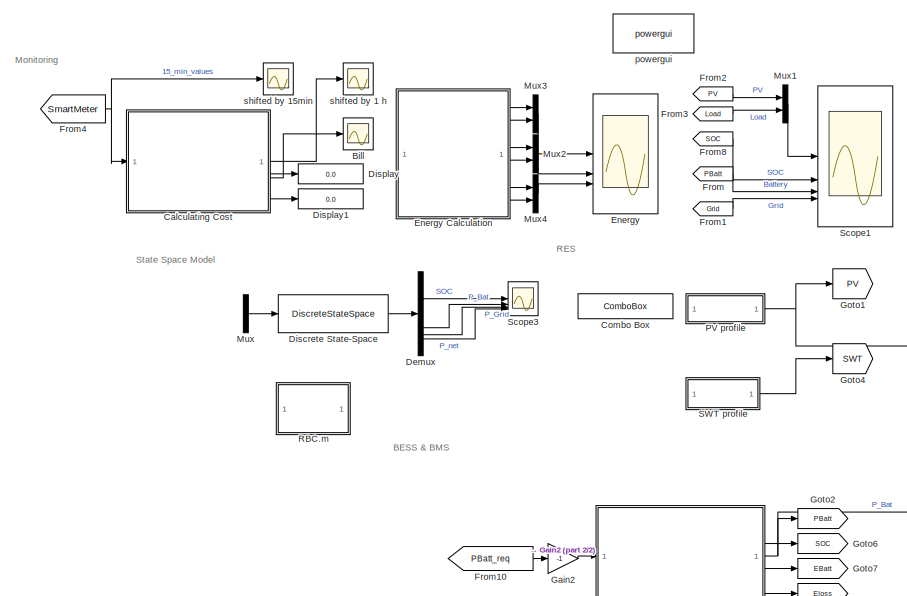
[diagram: root canvas - part 1/2, left side, full height]
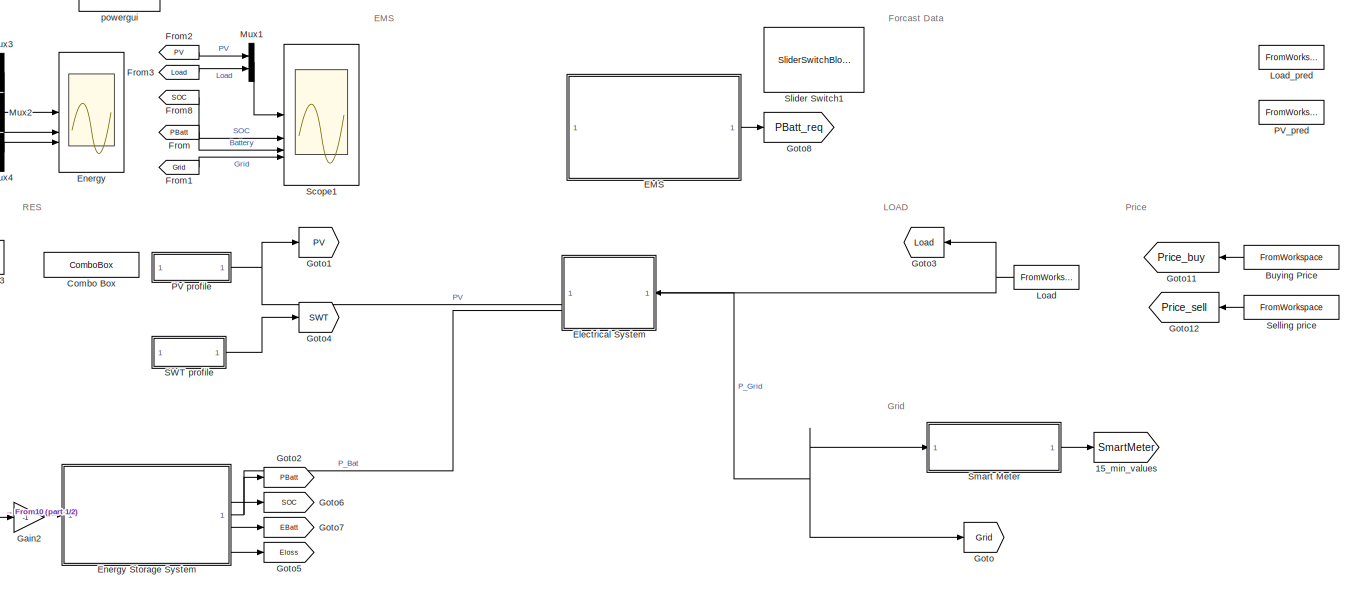
[diagram: root canvas - part 2/2, center side, full height]
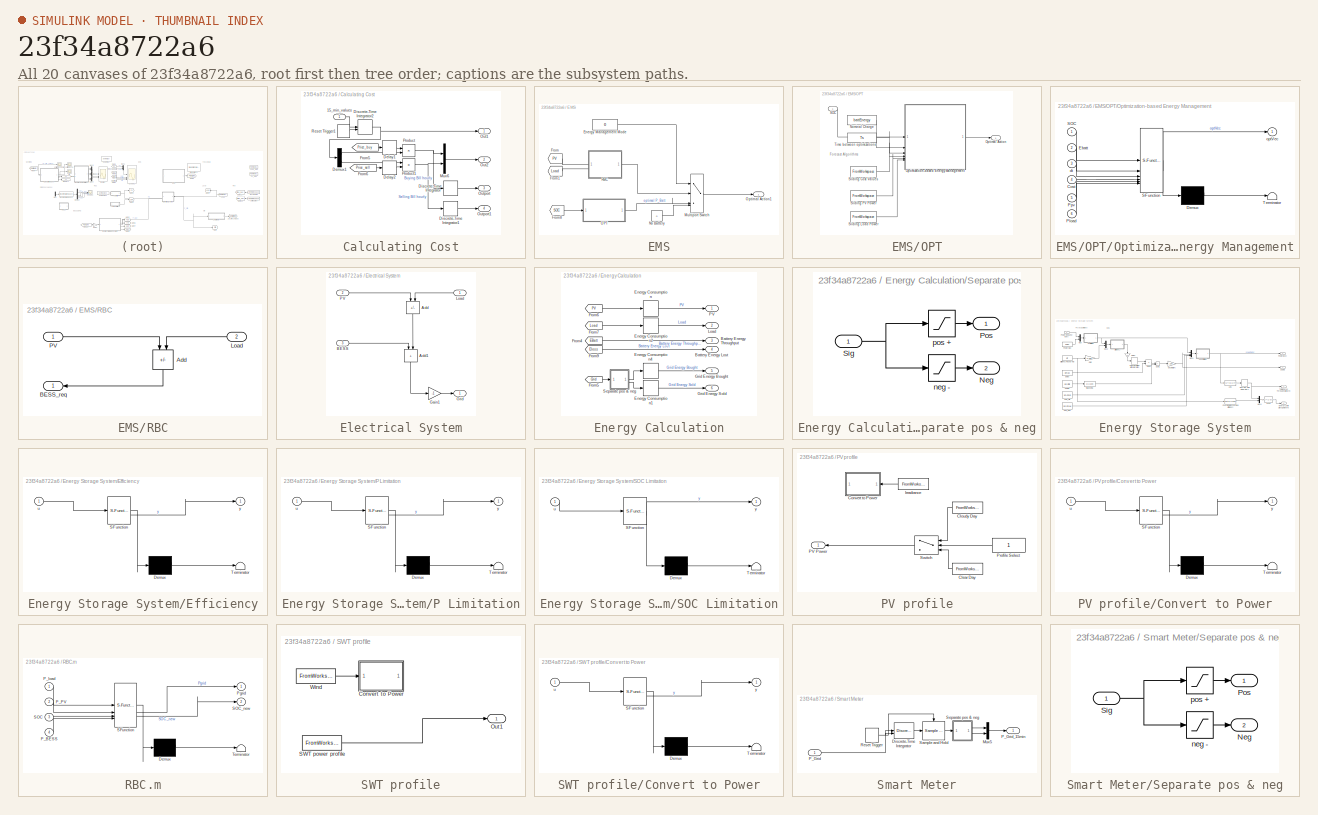
[diagram: thumbnail index - all 20 canvases of the model, root first then tree order]
MODEL slx_23f34a8722a6
KIND model
CONFIG AbsTol = auto
CONFIG EnableMultiTasking = on
CONFIG FixedStep = Ts
CONFIG InitFcn = % stepsize is now 1 per seconds cause 1 step is 1 minute\n\nTs=1/60;% 1Ts = 1minute => 60TimeSteps = 1hour\n\n% Simulation Time\nT_end = 24; % = 24 hours\n
CONFIG MaxStep = auto
CONFIG MinStep = auto
CONFIG RelTol = 1e-3
CONFIG SampleTimeConstraint = Unconstrained
CONFIG SolverName = FixedStepDiscrete
CONFIG StartTime = 0.0
CONFIG StopFcn = %
CONFIG StopTime = T_end
BLOCK [Goto] 15_min_values
  GotoTag = SmartMeter
  TagVisibility = global
BLOCK [Scope] Bill
  Floating = off
  NumInputPorts = 1
  ScopeSpecificationString = Simulink.scopes.TimeScopeBlockCfg('CurrentConfiguration', extmgr.ConfigurationSet(extmgr.Configuration('Core','General UI',true),extmgr.Configuration('Core','Source UI',true),extmgr.Configuration('Sources','WiredSimulink',true,'DataLoggingVariableName','ScopeData2'),extmgr.Configuration('Visuals','Time Domain',true,'SerializedDisplays',{struct('MinYLimReal','-1.9339','MaxYLimReal','2.14504','YLabe...<+1456ch>
BLOCK [FromWorkspace] Buying Price
  Interpolate = off
  OutputAfterFinalValue = Holding final value
  SampleTime = Ts*60
  VariableName = simProfile_PriceBuying
BLOCK [SubSystem] Calculating Cost
BLOCK [Inport] Calculating Cost/15_min_values
BLOCK [Delay] Calculating Cost/Delay1
  DelayLength = 1
  InputPortMap = u0
BLOCK [Delay] Calculating Cost/Delay2
  DelayLength = 1
  InputPortMap = u0
BLOCK [Demux] Calculating Cost/Demux1
  Outputs = 2
BLOCK [DiscreteIntegrator] Calculating Cost/Discrete-Time Integrator
  ICPrevOutput = DiscIntNeverNeededParam
  ICPrevScaledInput = DiscIntNeverNeededParam
  InitialConditionSetting = Auto
  SampleTime = -1
BLOCK [DiscreteIntegrator] Calculating Cost/Discrete-Time Integrator1
  ICPrevOutput = DiscIntNeverNeededParam
  ICPrevScaledInput = DiscIntNeverNeededParam
  InitialConditionSetting = Auto
  SampleTime = -1
BLOCK [DiscreteIntegrator] Calculating Cost/Discrete-Time Integrator2
  ExternalReset = sampled level
  ICPrevOutput = DiscIntNeverNeededParam
  ICPrevScaledInput = DiscIntNeverNeededParam
  InitialConditionSetting = Auto
  IntegratorMethod = Integration: Backward Euler
  SampleTime = Ts*60
  gainval = 1
BLOCK [From] Calculating Cost/From5
  GotoTag = Price_buy
  TagVisibility = global
BLOCK [From] Calculating Cost/From6
  GotoTag = Price_sell
  TagVisibility = global
BLOCK [Mux] Calculating Cost/Mux6
  DisplayOption = bar
  Inputs = 2
BLOCK [Outport] Calculating Cost/Out1
BLOCK [Outport] Calculating Cost/Out2
  Port = 2
BLOCK [Outport] Calculating Cost/Outport
  Port = 3
BLOCK [Outport] Calculating Cost/Outport1
  Port = 4
BLOCK [Product] Calculating Cost/Product
BLOCK [Product] Calculating Cost/Product1
BLOCK [DiscretePulseGenerator] Calculating Cost/Reset Trigger1
  Period = 60
  SampleTime = Ts
BLOCK [ComboBox] Combo Box
  LabelPosition = Hide
  NameLocation = top
  SelectedLabel = Cloudy Day
BLOCK [Demux] Demux
  Commented = on
BLOCK [DiscreteStateSpace] Discrete State-Space
  A = A
  B = B
  C = C
  Commented = on
  D = D
  InitialCondition = x0
  SampleTime = -1
BLOCK [Display] Display
  Decimation = 1
BLOCK [Display] Display1
  Decimation = 1
BLOCK [SubSystem] EMS
BLOCK [Constant] EMS/Energy Management Mode
  NameLocation = top
  Value = 0
BLOCK [From] EMS/From
  GotoTag = PV
  TagVisibility = global
BLOCK [From] EMS/From1
  GotoTag = Load
  TagVisibility = global
BLOCK [From] EMS/From8
  GotoTag = SOC
  TagVisibility = global
BLOCK [MultiPortSwitch] EMS/Multiport Switch
  DataPortOrder = Zero-based contiguous
  InputSameDT = off
  NameLocation = top
  SaturateOnIntegerOverflow = off
  zeroidx = on
BLOCK [Constant] EMS/No Battery
  Value = 0
BLOCK [SubSystem] EMS/OPT
  Commented = on
BLOCK [Constant] EMS/OPT/Nominal Charge
  Value = battEnergy
BLOCK [Outport] EMS/OPT/Optimal Action
  VectorParamsAs1DForOutWhenUnconnected = off
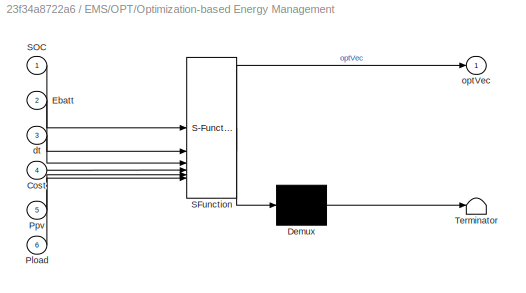
BLOCK [SubSystem] EMS/OPT/Optimization-based Energy Management
  ErrorFcn = Stateflow.Translate.translate
  PermitHierarchicalResolution = ExplicitOnly
  SFBlockType = MATLAB Function
  SystemSampleTime = optTime
  TreatAsAtomicUnit = on
BLOCK [Demux] EMS/OPT/Optimization-based Energy Management/ Demux 
  Outputs = 1
BLOCK [S-Function] EMS/OPT/Optimization-based Energy Management/ SFunction 
  EnableBusSupport = on
  FunctionName = sf_sfun
  PortCounts = [6 2]
  SFcnIsStateOwnerBlock = off
  SFunctionDeploymentMode = off
  Tag = Stateflow S-Function 5
BLOCK [Terminator] EMS/OPT/Optimization-based Energy Management/ Terminator 
BLOCK [Inport] EMS/OPT/Optimization-based Energy Management/Cost
  Port = 4
BLOCK [Inport] EMS/OPT/Optimization-based Energy Management/Ebatt
  Port = 2
BLOCK [Inport] EMS/OPT/Optimization-based Energy Management/Pload
  Port = 6
BLOCK [Inport] EMS/OPT/Optimization-based Energy Management/Ppv
  Port = 5
BLOCK [Inport] EMS/OPT/Optimization-based Energy Management/SOC
BLOCK [Inport] EMS/OPT/Optimization-based Energy Management/dt
  Port = 3
BLOCK [Outport] EMS/OPT/Optimization-based Energy Management/optVec
  VectorParamsAs1DForOutWhenUnconnected = off
BLOCK [Inport] EMS/OPT/SOC
BLOCK [FromWorkspace] EMS/OPT/Sliding Cost Values
  VariableName = CostForecast
BLOCK [FromWorkspace] EMS/OPT/Sliding Load Power
  VariableName = PloadForecast
BLOCK [FromWorkspace] EMS/OPT/Sliding PV Power
  VariableName = PpvForecast
BLOCK [Constant] EMS/OPT/Time between optimizations
  Value = Ts
BLOCK [Outport] EMS/Optimal Action1
  VectorParamsAs1DForOutWhenUnconnected = off
BLOCK [SubSystem] EMS/RBC
  PortSchema = {"entries":[{"content":{"sides":[{"content":{"connectorIds":["Out1"]},"type":"ConnectorPlacement.EquallySpacedRectSide","uuid":"ea2d6f6f-0b16-4ab1-9278-b701b85b7cf6"},{"content":{"connectorIds":["In1","In2"],"side":"RIGHT"},"type":"ConnectorPlacement.EquallySpacedRectSide","uuid":"7f792676-012d-49e4-aa54-4a4cf568511b"},{"content":{"side":"TOP"},"type":"ConnectorPlacement.EquallySpacedRectSide","uu...<+228ch>
BLOCK [Sum] EMS/RBC/Add
  IconShape = rectangular
  Inputs = +-
  NameLocation = left
BLOCK [Outport] EMS/RBC/BESS_req
BLOCK [Inport] EMS/RBC/Load
  Port = 2
BLOCK [Inport] EMS/RBC/PV
BLOCK [SubSystem] Electrical System
  PortSchema = {"entries":[{"content":{"sides":[{"content":{"connectorIds":["In1","Out1"]},"type":"ConnectorPlacement.EquallySpacedRectSide","uuid":"ea2d6f6f-0b16-4ab1-9278-b701b85b7cf6"},{"content":{"connectorIds":["In2","In3"],"side":"RIGHT"},"type":"ConnectorPlacement.EquallySpacedRectSide","uuid":"7f792676-012d-49e4-aa54-4a4cf568511b"},{"content":{"side":"TOP"},"type":"ConnectorPlacement.EquallySpacedRectSid...<+234ch>
BLOCK [Sum] Electrical System/Add
  IconShape = rectangular
  Inputs = +-
  NameLocation = left
BLOCK [Sum] Electrical System/Add1
  IconShape = rectangular
  NameLocation = left
BLOCK [Inport] Electrical System/BESS
  Port = 3
BLOCK [Gain] Electrical System/Gain1
  Gain = -1
BLOCK [Outport] Electrical System/Grid
BLOCK [Inport] Electrical System/Load
BLOCK [Inport] Electrical System/PV
  Port = 2
BLOCK [Scope] Energy 
  Floating = off
  NumInputPorts = 3
  ScopeSpecificationString = Simulink.scopes.TimeScopeBlockCfg('CurrentConfiguration', extmgr.ConfigurationSet(extmgr.Configuration('Core','General UI',true),extmgr.Configuration('Core','Source UI',true),extmgr.Configuration('Sources','WiredSimulink',true,'DataLoggingVariableName','ScopeData2'),extmgr.Configuration('Visuals','Time Domain',true,'SerializedDisplays',{struct('MinYLimReal','-4.19927','MaxYLimReal','37.79344','YLa...<+3050ch>
BLOCK [SubSystem] Energy Calculation
BLOCK [Outport] Energy Calculation/Battery Energy Lost
  NameLocation = right
  Port = 4
BLOCK [Outport] Energy Calculation/Battery Energy Throughput
  NameLocation = right
  Port = 3
BLOCK [DiscreteIntegrator] Energy Calculation/Energy Consumption
  ICPrevOutput = DiscIntNeverNeededParam
  ICPrevScaledInput = DiscIntNeverNeededParam
  SampleTime = -1
  gainval = 1
BLOCK [DiscreteIntegrator] Energy Calculation/Energy Consumption1
  ICPrevOutput = DiscIntNeverNeededParam
  ICPrevScaledInput = DiscIntNeverNeededParam
  SampleTime = -1
  gainval = 1
BLOCK [DiscreteIntegrator] Energy Calculation/Energy Consumption2
  ICPrevOutput = DiscIntNeverNeededParam
  ICPrevScaledInput = DiscIntNeverNeededParam
  SampleTime = -1
  gainval = 1
BLOCK [DiscreteIntegrator] Energy Calculation/Energy Consumption4
  ICPrevOutput = DiscIntNeverNeededParam
  ICPrevScaledInput = DiscIntNeverNeededParam
  SampleTime = -1
  gainval = 1
BLOCK [From] Energy Calculation/From4
  GotoTag = EBatt
  TagVisibility = global
BLOCK [From] Energy Calculation/From5
  GotoTag = Grid
  TagVisibility = global
BLOCK [From] Energy Calculation/From6
  GotoTag = PV
  TagVisibility = global
BLOCK [From] Energy Calculation/From7
  GotoTag = Load
  TagVisibility = global
BLOCK [From] Energy Calculation/From9
  GotoTag = Eloss
  TagVisibility = global
BLOCK [Outport] Energy Calculation/Grid Energy Bought
  NameLocation = right
  Port = 5
BLOCK [Outport] Energy Calculation/Grid Energy Sold
  NameLocation = right
  Port = 6
BLOCK [Outport] Energy Calculation/Load
  NameLocation = right
  Port = 2
BLOCK [Outport] Energy Calculation/PV
  NameLocation = right
BLOCK [SubSystem] Energy Calculation/Separate pos & neg
BLOCK [Outport] Energy Calculation/Separate pos & neg/Neg
  Port = 2
BLOCK [Outport] Energy Calculation/Separate pos & neg/Pos
BLOCK [Inport] Energy Calculation/Separate pos & neg/Sig
BLOCK [Saturate] Energy Calculation/Separate pos & neg/neg -
  LowerLimit = -inf
  UpperLimit = 0
BLOCK [Saturate] Energy Calculation/Separate pos & neg/pos +
  LowerLimit = 0
  UpperLimit = inf
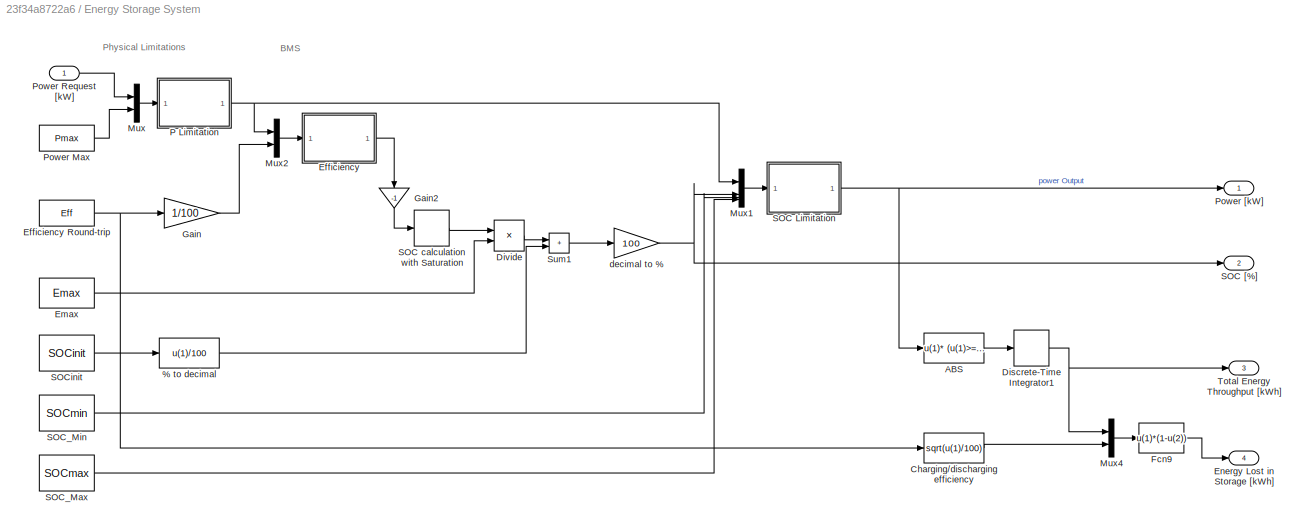
BLOCK [SubSystem] Energy Storage System
BLOCK [Outport] Energy Storage System/ Energy Lost in Storage [kWh]
  Port = 4
BLOCK [Fcn] Energy Storage System/% to decimal
  Expr = u(1)/100
BLOCK [Fcn] Energy Storage System/ABS
  Expr = u(1)* (u(1)>=0) - u(1)* (u(1)<0)
BLOCK [Fcn] Energy Storage System/Charging//discharging efficiency
  Expr = sqrt(u(1)/100)
BLOCK [DiscreteIntegrator] Energy Storage System/Discrete-Time Integrator1
  ICPrevOutput = DiscIntNeverNeededParam
  ICPrevScaledInput = DiscIntNeverNeededParam
  SampleTime = -1
  gainval = 1
BLOCK [Product] Energy Storage System/Divide
  Inputs = */
BLOCK [SubSystem] Energy Storage System/Efficiency
  ErrorFcn = Stateflow.Translate.translate
  PermitHierarchicalResolution = ExplicitOnly
  SFBlockType = MATLAB Function
  TreatAsAtomicUnit = on
BLOCK [Constant] Energy Storage System/Efficiency Round-trip
  Value = Eff
BLOCK [Demux] Energy Storage System/Efficiency/ Demux 
  Outputs = 1
BLOCK [S-Function] Energy Storage System/Efficiency/ SFunction 
  EnableBusSupport = on
  FunctionName = sf_sfun
  PortCounts = [1 2]
  SFcnIsStateOwnerBlock = off
  SFunctionDeploymentMode = off
  Tag = Stateflow S-Function 4
BLOCK [Terminator] Energy Storage System/Efficiency/ Terminator 
BLOCK [Inport] Energy Storage System/Efficiency/u
BLOCK [Outport] Energy Storage System/Efficiency/y
BLOCK [Constant] Energy Storage System/Emax
  Value = Emax
BLOCK [Fcn] Energy Storage System/Fcn9
  Expr = u(1)*(1-u(2))
BLOCK [Gain] Energy Storage System/Gain
  Gain = 1/100
BLOCK [Gain] Energy Storage System/Gain2
  Gain = -1
  NameLocation = left
BLOCK [Mux] Energy Storage System/Mux
  DisplayOption = bar
  Inputs = 2
BLOCK [Mux] Energy Storage System/Mux1
  DisplayOption = bar
BLOCK [Mux] Energy Storage System/Mux2
  DisplayOption = bar
  Inputs = 2
BLOCK [Mux] Energy Storage System/Mux4
  DisplayOption = bar
  Inputs = 2
BLOCK [SubSystem] Energy Storage System/P Limitation
  ErrorFcn = Stateflow.Translate.translate
  PermitHierarchicalResolution = ExplicitOnly
  SFBlockType = MATLAB Function
  TreatAsAtomicUnit = on
BLOCK [Demux] Energy Storage System/P Limitation/ Demux 
  Outputs = 1
BLOCK [S-Function] Energy Storage System/P Limitation/ SFunction 
  EnableBusSupport = on
  FunctionName = sf_sfun
  PortCounts = [1 2]
  SFcnIsStateOwnerBlock = off
  SFunctionDeploymentMode = off
  Tag = Stateflow S-Function 1
BLOCK [Terminator] Energy Storage System/P Limitation/ Terminator 
BLOCK [Inport] Energy Storage System/P Limitation/u
BLOCK [Outport] Energy Storage System/P Limitation/y
BLOCK [Constant] Energy Storage System/Power Max
  Value = Pmax
BLOCK [Inport] Energy Storage System/Power Request [kW]
BLOCK [Outport] Energy Storage System/Power [kW]
BLOCK [SubSystem] Energy Storage System/SOC Limitation
  ErrorFcn = Stateflow.Translate.translate
  PermitHierarchicalResolution = ExplicitOnly
  SFBlockType = MATLAB Function
  TreatAsAtomicUnit = on
BLOCK [Demux] Energy Storage System/SOC Limitation/ Demux 
  Outputs = 1
BLOCK [S-Function] Energy Storage System/SOC Limitation/ SFunction 
  EnableBusSupport = on
  FunctionName = sf_sfun
  PortCounts = [1 2]
  SFcnIsStateOwnerBlock = off
  SFunctionDeploymentMode = off
  Tag = Stateflow S-Function 2
BLOCK [Terminator] Energy Storage System/SOC Limitation/ Terminator 
BLOCK [Inport] Energy Storage System/SOC Limitation/u
BLOCK [Outport] Energy Storage System/SOC Limitation/y
BLOCK [Outport] Energy Storage System/SOC [%]
  Port = 2
BLOCK [DiscreteIntegrator] Energy Storage System/SOC calculation with Saturation
  ICPrevOutput = DiscIntNeverNeededParam
  ICPrevScaledInput = DiscIntNeverNeededParam
  LimitOutput = on
  LowerSaturationLimit = +SOCmin/100*Emax - SOCinit/100 *Emax
  SampleTime = -1
  UpperSaturationLimit = SOCmax/100*Emax -SOCinit/100 *Emax
  gainval = 1
BLOCK [Constant] Energy Storage System/SOC_Max
  Value = SOCmax
BLOCK [Constant] Energy Storage System/SOC_Min
  Value = SOCmin
BLOCK [Constant] Energy Storage System/SOCinit
  Value = SOCinit
BLOCK [Sum] Energy Storage System/Sum1
  IconShape = rectangular
BLOCK [Outport] Energy Storage System/Total Energy Throughput [kWh]
  Port = 3
BLOCK [Gain] Energy Storage System/decimal to %
  Gain = 100
BLOCK [From] From
  GotoTag = PBatt
  TagVisibility = global
BLOCK [From] From1
  GotoTag = Grid
  TagVisibility = global
BLOCK [From] From10
  GotoTag = PBatt_req
BLOCK [From] From2
  GotoTag = PV
  TagVisibility = global
BLOCK [From] From3
  GotoTag = Load
  TagVisibility = global
BLOCK [From] From4
  GotoTag = SmartMeter
  TagVisibility = global
BLOCK [From] From8
  GotoTag = SOC
  TagVisibility = global
BLOCK [Gain] Gain2
  Gain = -1
BLOCK [Goto] Goto
  GotoTag = Grid
  TagVisibility = global
BLOCK [Goto] Goto1
  GotoTag = PV
  TagVisibility = global
BLOCK [Goto] Goto11
  GotoTag = Price_buy
  NameLocation = top
  TagVisibility = global
BLOCK [Goto] Goto12
  GotoTag = Price_sell
  NameLocation = top
  TagVisibility = global
BLOCK [Goto] Goto2
  GotoTag = PBatt
  TagVisibility = global
BLOCK [Goto] Goto3
  GotoTag = Load
  NameLocation = top
  TagVisibility = global
BLOCK [Goto] Goto4
  Commented = on
  GotoTag = SWT
  TagVisibility = global
BLOCK [Goto] Goto5
  GotoTag = Eloss
  TagVisibility = global
BLOCK [Goto] Goto6
  GotoTag = SOC
  TagVisibility = global
BLOCK [Goto] Goto7
  GotoTag = EBatt
  TagVisibility = global
BLOCK [Goto] Goto8
  GotoTag = PBatt_req
BLOCK [FromWorkspace] Load
  OutputAfterFinalValue = Holding final value
  SampleTime = Ts
  VariableName = simProfile_Load
BLOCK [FromWorkspace] Load_pred
  Commented = on
  OutputAfterFinalValue = Holding final value
  SampleTime = Ts
  VariableName = simProfile_LoadPrediction
BLOCK [Mux] Mux
  Commented = on
  DisplayOption = bar
  Inputs = 2
BLOCK [Mux] Mux1
  DisplayOption = bar
  Inputs = 2
BLOCK [Mux] Mux2
  DisplayOption = bar
  Inputs = 2
BLOCK [Mux] Mux3
  DisplayOption = bar
  Inputs = 2
BLOCK [Mux] Mux4
  DisplayOption = bar
  Inputs = 2
BLOCK [SubSystem] PV profile
BLOCK [FromWorkspace] PV profile/Clear Day
  Commented = on
  VariableName = [time cloudyPpv]
BLOCK [FromWorkspace] PV profile/Cloudy Day
  VariableName = simProfile_PV
BLOCK [SubSystem] PV profile/Convert to Power
  Commented = on
  ErrorFcn = Stateflow.Translate.translate
  PermitHierarchicalResolution = ExplicitOnly
  SFBlockType = MATLAB Function
  TreatAsAtomicUnit = on
BLOCK [Demux] PV profile/Convert to Power/ Demux 
  Outputs = 1
BLOCK [S-Function] PV profile/Convert to Power/ SFunction 
  EnableBusSupport = off
  FunctionName = sf_sfun
  PortCounts = [1 2]
  SFcnIsStateOwnerBlock = off
  SFunctionDeploymentMode = off
  Tag = Stateflow S-Function 6
BLOCK [Terminator] PV profile/Convert to Power/ Terminator 
BLOCK [Inport] PV profile/Convert to Power/u
BLOCK [Outport] PV profile/Convert to Power/y
BLOCK [FromWorkspace] PV profile/Irradiance
  Commented = on
  VariableName = simProfile_PV
BLOCK [Outport] PV profile/PV Power
  VectorParamsAs1DForOutWhenUnconnected = off
BLOCK [Constant] PV profile/Profile Select
BLOCK [Switch] PV profile/Switch
  Criteria = u2 > Threshold
  InputSameDT = off
  SaturateOnIntegerOverflow = off
BLOCK [FromWorkspace] PV_pred
  Commented = on
  OutputAfterFinalValue = Holding final value
  SampleTime = Ts
  VariableName = simProfile_SolarPredict
BLOCK [SubSystem] RBC.m
  Commented = on
  ErrorFcn = Stateflow.Translate.translate
  PermitHierarchicalResolution = ExplicitOnly
  SFBlockType = MATLAB Function
  TreatAsAtomicUnit = on
BLOCK [Demux] RBC.m/ Demux 
  Outputs = 1
BLOCK [S-Function] RBC.m/ SFunction 
  EnableBusSupport = on
  FunctionName = sf_sfun
  PortCounts = [4 3]
  SFcnIsStateOwnerBlock = off
  SFunctionDeploymentMode = off
  Tag = Stateflow S-Function 3
BLOCK [Terminator] RBC.m/ Terminator 
BLOCK [Inport] RBC.m/P_BESS
  Port = 4
BLOCK [Inport] RBC.m/P_PV
  Port = 2
BLOCK [Inport] RBC.m/P_load
BLOCK [Outport] RBC.m/Pgrid
BLOCK [Inport] RBC.m/SOC
  Port = 3
BLOCK [Outport] RBC.m/SOC_new
  Port = 2
BLOCK [SubSystem] SWT profile
  Commented = on
BLOCK [SubSystem] SWT profile/Convert to Power
  Commented = on
  ErrorFcn = Stateflow.Translate.translate
  PermitHierarchicalResolution = ExplicitOnly
  SFBlockType = MATLAB Function
  TreatAsAtomicUnit = on
BLOCK [Demux] SWT profile/Convert to Power/ Demux 
  Outputs = 1
BLOCK [S-Function] SWT profile/Convert to Power/ SFunction 
  EnableBusSupport = off
  FunctionName = sf_sfun
  PortCounts = [1 2]
  SFcnIsStateOwnerBlock = off
  SFunctionDeploymentMode = off
  Tag = Stateflow S-Function 7
BLOCK [Terminator] SWT profile/Convert to Power/ Terminator 
BLOCK [Inport] SWT profile/Convert to Power/u
BLOCK [Outport] SWT profile/Convert to Power/y
BLOCK [Outport] SWT profile/Out1
BLOCK [FromWorkspace] SWT profile/SWT power profile
  VariableName = simProfile_SWT
BLOCK [FromWorkspace] SWT profile/Wind
  Commented = on
  VariableName = simProfile_PV
BLOCK [Scope] Scope1
  Floating = off
  NumInputPorts = 4
  ScopeSpecificationString = Simulink.scopes.TimeScopeBlockCfg('CurrentConfiguration', extmgr.ConfigurationSet(extmgr.Configuration('Core','General UI',true),extmgr.Configuration('Core','Source UI',true),extmgr.Configuration('Sources','WiredSimulink',true,'DataLoggingVariableName','ScopeData1'),extmgr.Configuration('Visuals','Time Domain',true,'SerializedDisplays',{struct('MinYLimReal','-0.65853','MaxYLimReal','5.92678','YLab...<+2913ch>
BLOCK [Scope] Scope3
  Commented = on
  Floating = off
  NumInputPorts = 4
  ScopeSpecificationString = Simulink.scopes.TimeScopeBlockCfg('CurrentConfiguration', extmgr.ConfigurationSet(extmgr.Configuration('Core','General UI',true),extmgr.Configuration('Core','Source UI',true),extmgr.Configuration('Sources','WiredSimulink',true,'DataLoggingVariableName','ScopeData1'),extmgr.Configuration('Visuals','Time Domain',true,'SerializedDisplays',{struct('MinYLimReal','-12.51009','MaxYLimReal','112.59081','Y...<+3588ch>
BLOCK [FromWorkspace] Selling price
  Interpolate = off
  OutputAfterFinalValue = Holding final value
  SampleTime = Ts*60
  VariableName = simProfile_PriceSelling
BLOCK [SliderSwitchBlock] Slider Switch1
BLOCK [SubSystem] Smart Meter
BLOCK [DiscreteIntegrator] Smart Meter/Discrete-Time Integrator
  ExternalReset = falling
  ICPrevOutput = DiscIntNeverNeededParam
  ICPrevScaledInput = DiscIntNeverNeededParam
  InitialConditionSetting = Auto
  IntegratorMethod = Integration: Trapezoidal
  SampleTime = -1
  gainval = 1/(Ts*15)
BLOCK [Mux] Smart Meter/Mux5
  DisplayOption = bar
  Inputs = 2
BLOCK [Inport] Smart Meter/P_Grid
BLOCK [Outport] Smart Meter/P_Grid_15min
BLOCK [DiscretePulseGenerator] Smart Meter/Reset Trigger
  Period = 15
  SampleTime = Ts
BLOCK [Reference] Smart Meter/Sample and Hold  REF=dspsigops/Sample
and Hold
  LibrarySourceBlock = dsphdlsupportsigops/Sample\nand Hold
  SourceBlock = dspsigops/Sample\nand Hold
  SourceType = Sample and Hold
BLOCK [SubSystem] Smart Meter/Separate pos & neg
BLOCK [Outport] Smart Meter/Separate pos & neg/Neg
  Port = 2
BLOCK [Outport] Smart Meter/Separate pos & neg/Pos
BLOCK [Inport] Smart Meter/Separate pos & neg/Sig
BLOCK [Saturate] Smart Meter/Separate pos & neg/neg -
  LowerLimit = -inf
  UpperLimit = 0
BLOCK [Saturate] Smart Meter/Separate pos & neg/pos +
  LowerLimit = 0
  UpperLimit = inf
BLOCK [Reference] powergui  REF=spspowerguiLib/powergui
  LibrarySourceBlock = sps_lib/powergui
  Priority = 1
  SourceBlock = spspowerguiLib/powergui
  SourceType = PSB option menu block
BLOCK [Scope] shifted by 1 h
  Floating = off
  NumInputPorts = 1
  ScopeSpecificationString = Simulink.scopes.TimeScopeBlockCfg('CurrentConfiguration', extmgr.ConfigurationSet(extmgr.Configuration('Core','General UI',true),extmgr.Configuration('Core','Source UI',true),extmgr.Configuration('Sources','WiredSimulink',true,'DataLoggingVariableName','ScopeData4'),extmgr.Configuration('Visuals','Time Domain',true,'SerializedDisplays',{struct('MinYLimReal','-4.50816','MaxYLimReal','3.28665','YLab...<+1490ch>
BLOCK [Scope] shifted by 15min
  Floating = off
  NumInputPorts = 1
  ScopeSpecificationString = Simulink.scopes.TimeScopeBlockCfg('CurrentConfiguration', extmgr.ConfigurationSet(extmgr.Configuration('Core','General UI',true),extmgr.Configuration('Core','Source UI',true),extmgr.Configuration('Sources','WiredSimulink',true,'DataLoggingVariableName','ScopeData1'),extmgr.Configuration('Visuals','Time Domain',true,'SerializedDisplays',{struct('MinYLimReal','-4.50816','MaxYLimReal','3.28665','YLab...<+1467ch>
ANNOTATION (root): BESS & BMS
ANNOTATION (root): EMS
ANNOTATION (root): Forcast Data
ANNOTATION (root): Grid
ANNOTATION (root): LOAD
ANNOTATION (root): Monitoring
ANNOTATION (root): Price
ANNOTATION (root): RES
ANNOTATION (root): State Space Model
ANNOTATION EMS/OPT: Forecast Algorithms
ANNOTATION Energy Storage System: BMS
ANNOTATION Energy Storage System: Physical Limitations
LINE Buying Price:1 -> Goto11:1
LINE Calculating Cost/15_min_values:1 -> Calculating Cost/Discrete-Time Integrator2:1
LINE Calculating Cost/Delay1:1 -> Calculating Cost/Product:1
LINE Calculating Cost/Delay2:1 -> Calculating Cost/Product1:2
LINE Calculating Cost/Demux1:1 -> Calculating Cost/Product:2
LINE Calculating Cost/Demux1:2 -> Calculating Cost/Product1:1
LINE Calculating Cost/Discrete-Time Integrator1:1 -> Calculating Cost/Outport1:1
NET Calculating Cost/Discrete-Time Integrator2:1 -> Calculating Cost/Demux1:1, Calculating Cost/Out1:1
LINE Calculating Cost/Discrete-Time Integrator:1 -> Calculating Cost/Outport:1
LINE Calculating Cost/From5:1 -> Calculating Cost/Delay1:1
LINE Calculating Cost/From6:1 -> Calculating Cost/Delay2:1
LINE Calculating Cost/Mux6:1 -> Calculating Cost/Out2:1
NET Calculating Cost/Product1:1 -> Calculating Cost/Discrete-Time Integrator1:1, Calculating Cost/Mux6:2
NET Calculating Cost/Product:1 -> Calculating Cost/Discrete-Time Integrator:1, Calculating Cost/Mux6:1
LINE Calculating Cost/Reset Trigger1:1 -> Calculating Cost/Discrete-Time Integrator2:2
LINE Calculating Cost:1 -> shifted by 1 h:1
LINE Calculating Cost:2 -> Bill:1
LINE Calculating Cost:3 -> Display:1
LINE Calculating Cost:4 -> Display1:1
LINE Demux:1 -> Scope3:1
LINE Demux:2 -> Scope3:2
LINE Demux:3 -> Scope3:3
LINE Demux:4 -> Scope3:4
LINE Discrete State-Space:1 -> Demux:1
LINE EMS/Energy Management Mode:1 -> EMS/Multiport Switch:1
LINE EMS/From1:1 -> EMS/RBC:2
LINE EMS/From8:1 -> EMS/OPT:1
LINE EMS/From:1 -> EMS/RBC:1
LINE EMS/Multiport Switch:1 -> EMS/Optimal Action1:1
LINE EMS/No Battery:1 -> EMS/Multiport Switch:4
LINE EMS/OPT/Nominal Charge:1 -> EMS/OPT/Optimization-based Energy Management:2
LINE EMS/OPT/Optimization-based Energy Management:1 -> EMS/OPT/Optimal Action:1
LINE EMS/OPT/SOC:1 -> EMS/OPT/Optimization-based Energy Management:1
LINE EMS/OPT/Sliding Cost Values:1 -> EMS/OPT/Optimization-based Energy Management:4
LINE EMS/OPT/Sliding Load Power:1 -> EMS/OPT/Optimization-based Energy Management:6
LINE EMS/OPT/Sliding PV Power:1 -> EMS/OPT/Optimization-based Energy Management:5
LINE EMS/OPT/Time between optimizations:1 -> EMS/OPT/Optimization-based Energy Management:3
LINE EMS/OPT:1 -> EMS/Multiport Switch:3
LINE EMS/RBC/Add:1 -> EMS/RBC/BESS_req:1
LINE EMS/RBC/Load:1 -> EMS/RBC/Add:2
LINE EMS/RBC/PV:1 -> EMS/RBC/Add:1
LINE EMS/RBC:1 -> EMS/Multiport Switch:2
LINE EMS:1 -> Goto8:1
LINE Electrical System/Add1:1 -> Electrical System/Gain1:1
LINE Electrical System/Add:1 -> Electrical System/Add1:2
LINE Electrical System/BESS:1 -> Electrical System/Add1:1
LINE Electrical System/Gain1:1 -> Electrical System/Grid:1
LINE Electrical System/Load:1 -> Electrical System/Add:2
LINE Electrical System/PV:1 -> Electrical System/Add:1
NET Electrical System:1 -> Goto:1, Smart Meter:1
LINE Energy Calculation/Energy Consumption1:1 -> Energy Calculation/Grid Energy Sold:1
LINE Energy Calculation/Energy Consumption2:1 -> Energy Calculation/Load:1
LINE Energy Calculation/Energy Consumption4:1 -> Energy Calculation/Grid Energy Bought:1
LINE Energy Calculation/Energy Consumption:1 -> Energy Calculation/PV:1
LINE Energy Calculation/From4:1 -> Energy Calculation/Battery Energy Throughput:1
LINE Energy Calculation/From5:1 -> Energy Calculation/Separate pos & neg:1
LINE Energy Calculation/From6:1 -> Energy Calculation/Energy Consumption:1
LINE Energy Calculation/From7:1 -> Energy Calculation/Energy Consumption2:1
LINE Energy Calculation/From9:1 -> Energy Calculation/Battery Energy Lost:1
NET Energy Calculation/Separate pos & neg/Sig:1 -> Energy Calculation/Separate pos & neg/neg -:1, Energy Calculation/Separate pos & neg/pos +:1
LINE Energy Calculation/Separate pos & neg/neg -:1 -> Energy Calculation/Separate pos & neg/Neg:1
LINE Energy Calculation/Separate pos & neg/pos +:1 -> Energy Calculation/Separate pos & neg/Pos:1
LINE Energy Calculation/Separate pos & neg:1 -> Energy Calculation/Energy Consumption4:1
LINE Energy Calculation/Separate pos & neg:2 -> Energy Calculation/Energy Consumption1:1
LINE Energy Calculation:1 -> Mux3:1
LINE Energy Calculation:2 -> Mux3:2
LINE Energy Calculation:3 -> Mux2:1
LINE Energy Calculation:4 -> Mux2:2
LINE Energy Calculation:5 -> Mux4:1
LINE Energy Calculation:6 -> Mux4:2
LINE Energy Storage System/% to decimal:1 -> Energy Storage System/Sum1:2
LINE Energy Storage System/ABS:1 -> Energy Storage System/Discrete-Time Integrator1:1
LINE Energy Storage System/Charging//discharging efficiency:1 -> Energy Storage System/Mux4:2
NET Energy Storage System/Discrete-Time Integrator1:1 -> Energy Storage System/Mux4:1, Energy Storage System/Total Energy Throughput [kWh]:1
LINE Energy Storage System/Divide:1 -> Energy Storage System/Sum1:1
NET Energy Storage System/Efficiency Round-trip:1 -> Energy Storage System/Charging//discharging efficiency:1, Energy Storage System/Gain:1
LINE Energy Storage System/Efficiency:1 -> Energy Storage System/Gain2:1
LINE Energy Storage System/Emax:1 -> Energy Storage System/Divide:2
LINE Energy Storage System/Fcn9:1 -> Energy Storage System/ Energy Lost in Storage [kWh]:1
LINE Energy Storage System/Gain2:1 -> Energy Storage System/SOC calculation with Saturation:1
LINE Energy Storage System/Gain:1 -> Energy Storage System/Mux2:2
LINE Energy Storage System/Mux1:1 -> Energy Storage System/SOC Limitation:1
LINE Energy Storage System/Mux2:1 -> Energy Storage System/Efficiency:1
LINE Energy Storage System/Mux4:1 -> Energy Storage System/Fcn9:1
LINE Energy Storage System/Mux:1 -> Energy Storage System/P Limitation:1
NET Energy Storage System/P Limitation:1 -> Energy Storage System/Mux1:1, Energy Storage System/Mux2:1
LINE Energy Storage System/Power Max:1 -> Energy Storage System/Mux:2
LINE Energy Storage System/Power Request [kW]:1 -> Energy Storage System/Mux:1
NET Energy Storage System/SOC Limitation:1 -> Energy Storage System/ABS:1, Energy Storage System/Power [kW]:1
LINE Energy Storage System/SOC calculation with Saturation:1 -> Energy Storage System/Divide:1
LINE Energy Storage System/SOC_Max:1 -> Energy Storage System/Mux1:4
LINE Energy Storage System/SOC_Min:1 -> Energy Storage System/Mux1:3
LINE Energy Storage System/SOCinit:1 -> Energy Storage System/% to decimal:1
LINE Energy Storage System/Sum1:1 -> Energy Storage System/decimal to %:1
NET Energy Storage System/decimal to %:1 -> Energy Storage System/Mux1:2, Energy Storage System/SOC [%]:1
NET Energy Storage System:1 -> Electrical System:3, Goto2:1
LINE Energy Storage System:2 -> Goto6:1
LINE Energy Storage System:3 -> Goto7:1
LINE Energy Storage System:4 -> Goto5:1
LINE From10:1 -> Gain2:1
LINE From1:1 -> Scope1:4
LINE From2:1 -> Mux1:1
LINE From3:1 -> Mux1:2
NET From4:1 -> Calculating Cost:1, shifted by 15min:1
LINE From8:1 -> Scope1:2
LINE From:1 -> Scope1:3
LINE Gain2:1 -> Energy Storage System:1
NET Load:1 -> Electrical System:1, Goto3:1
LINE Mux1:1 -> Scope1:1
LINE Mux2:1 -> Energy :2
LINE Mux3:1 -> Energy :1
LINE Mux4:1 -> Energy :3
LINE Mux:1 -> Discrete State-Space:1
LINE PV profile/Clear Day:1 -> PV profile/Switch:3
LINE PV profile/Cloudy Day:1 -> PV profile/Switch:1
LINE PV profile/Irradiance:1 -> PV profile/Convert to Power:1
LINE PV profile/Profile Select:1 -> PV profile/Switch:2
LINE PV profile/Switch:1 -> PV profile/PV Power:1
NET PV profile:1 -> Electrical System:2, Goto1:1
LINE SWT profile/SWT power profile:1 -> SWT profile/Out1:1
LINE SWT profile/Wind:1 -> SWT profile/Convert to Power:1
LINE SWT profile:1 -> Goto4:1
LINE Selling price:1 -> Goto12:1
LINE Smart Meter/Discrete-Time Integrator:1 -> Smart Meter/Sample and Hold:1
LINE Smart Meter/Mux5:1 -> Smart Meter/P_Grid_15min:1
LINE Smart Meter/P_Grid:1 -> Smart Meter/Discrete-Time Integrator:1
NET Smart Meter/Reset Trigger:1 -> Smart Meter/Discrete-Time Integrator:2, Smart Meter/Sample and Hold:trigger
LINE Smart Meter/Sample and Hold:1 -> Smart Meter/Separate pos & neg:1
NET Smart Meter/Separate pos & neg/Sig:1 -> Smart Meter/Separate pos & neg/neg -:1, Smart Meter/Separate pos & neg/pos +:1
LINE Smart Meter/Separate pos & neg/neg -:1 -> Smart Meter/Separate pos & neg/Neg:1
LINE Smart Meter/Separate pos & neg/pos +:1 -> Smart Meter/Separate pos & neg/Pos:1
LINE Smart Meter/Separate pos & neg:1 -> Smart Meter/Mux5:1
LINE Smart Meter/Separate pos & neg:2 -> Smart Meter/Mux5:2
LINE Smart Meter:1 -> 15_min_values:1
note: NET lines group one-source signal fan-out (src -> all destinations, sorted); 1:1 wires keep LINE
CHART Energy Storage System/P Limitation states=1 transitions=1
  STATE_LABEL 'eML_blk_kernel()'
  STATE_LABEL 'SCRIPT:\nfunction y = fcn(u)\ny = min(max(u(1), -u(2)), u(2));\n'
CHART Energy Storage System/SOC Limitation states=1 transitions=1
  STATE_LABEL 'eML_blk_kernel()'
  STATE_LABEL 'SCRIPT:\nfunction y = fcn(u)\nPout = u(1);\nSOC = u(2) ;\nSOC_min = u(3);\nSOC_max = u(4);\n\nif ( SOC<=SOC_min || SOC>=SOC_max)\n    Pout = 0;\nend\n\ny = Pout;\n'
CHART RBC.m states=1 transitions=1
  STATE_LABEL 'eML_blk_kernel()'
  STATE_LABEL 'SCRIPT:\nfunction [Pgrid, SOC_new] = fcn(P_load, P_PV, SOC, P_BESS)\n    battery_min_soc = 20\n\n    % Net load is load minus PV generation\n    net_load = P_load - P_PV;  % Net load to be supplied\n\n    % If net load is positive, we need to either discharge the battery or buy from grid\n    if net_load > 0\n        if battery_soc_kWh(t) > battery_min_soc/100 *battery_capacity % If battery has charge, dis...<+1341ch>'
CHART Energy Storage System/Efficiency states=1 transitions=1
  STATE_LABEL 'eML_blk_kernel()'
  STATE_LABEL 'SCRIPT:\nfunction y = fcn(u)\nPreq = u(1);\neff = u(2) ;\n\nif ( Preq>0) % Discharging\n    y = u(1)/u(2); % for charging soc = P_bat/eff\nelse % charging\n    y = u(1)*u(2); % for charging soc = P_bat*eff\nend\n\n'
CHART EMS/OPT/Optimization-based
Energy Management states=1 transitions=1
  STATE_LABEL 'eML_blk_kernel()'
  STATE_LABEL "SCRIPT:\nfunction optVec  = fcn(SOC,Ebatt,dt,Cost,Ppv,Pload)\n%#codegen\n\nM = 241;\noptVec = 0;\nPbatt = zeros(M,1);\nEnergyWeight = 1;\n\n% Energy constraints\nbatteryMinMax.Emax = 0.8*Ebatt;\nbatteryMinMax.Emin = 0.2*Ebatt;\n\n% Power constraints\nbatteryMinMax.Pmin = -400e3;\nbatteryMinMax.Pmax = 400e3;\n\n% Declare function (contains linprog) as extrinsic\ncoder.extrinsic('battSolarOptimize');\n\n% Battery param...<+173ch>"
CHART PV profile/Convert to Power states=1 transitions=1
  STATE_LABEL 'eML_blk_kernel()'
  STATE_LABEL 'SCRIPT:\nfunction y = fcn(u)\n\ny = u;\n'
CHART SWT profile/Convert to Power states=1 transitions=1
  STATE_LABEL 'eML_blk_kernel()'
  STATE_LABEL 'SCRIPT:\nfunction y = fcn(u)\n\ny = u;\n'
CHART  states=0 transitions=0
CHART  states=0 transitions=0
CHART  states=0 transitions=0
CHART  states=0 transitions=0
CHART  states=0 transitions=0
CHART  states=0 transitions=0
CHART  states=0 transitions=0
